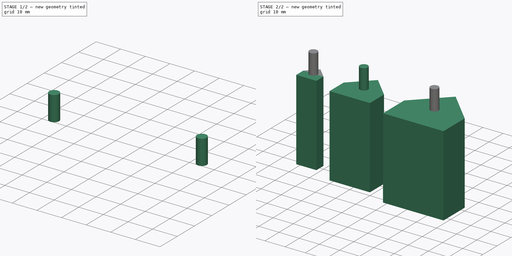
[diagram: build sequence overview — one tinted view per stage of 2, left to right]
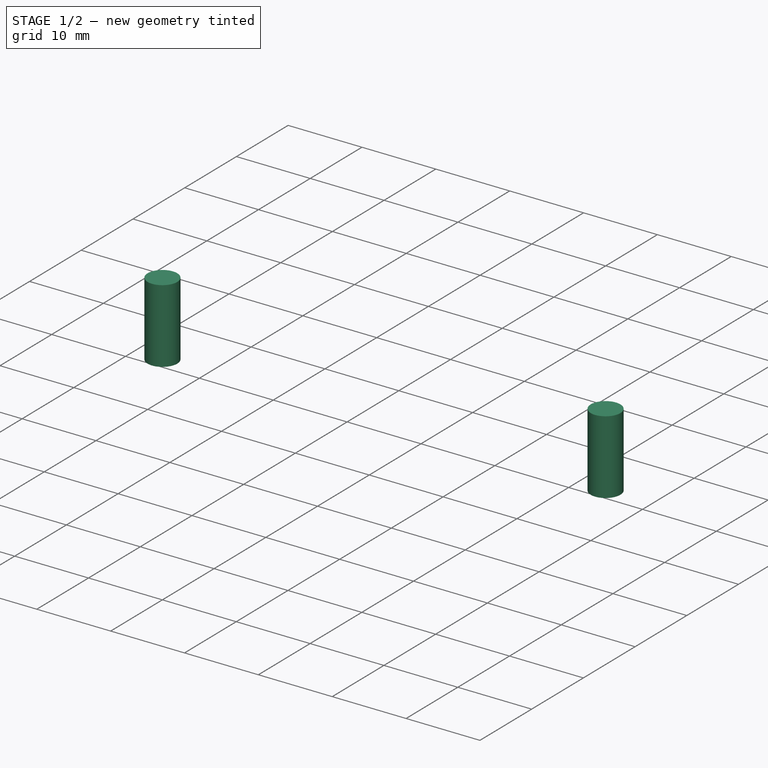
[diagram: stage 1 of 2 — iso view after this stage's code; geometry added in this stage tinted green]
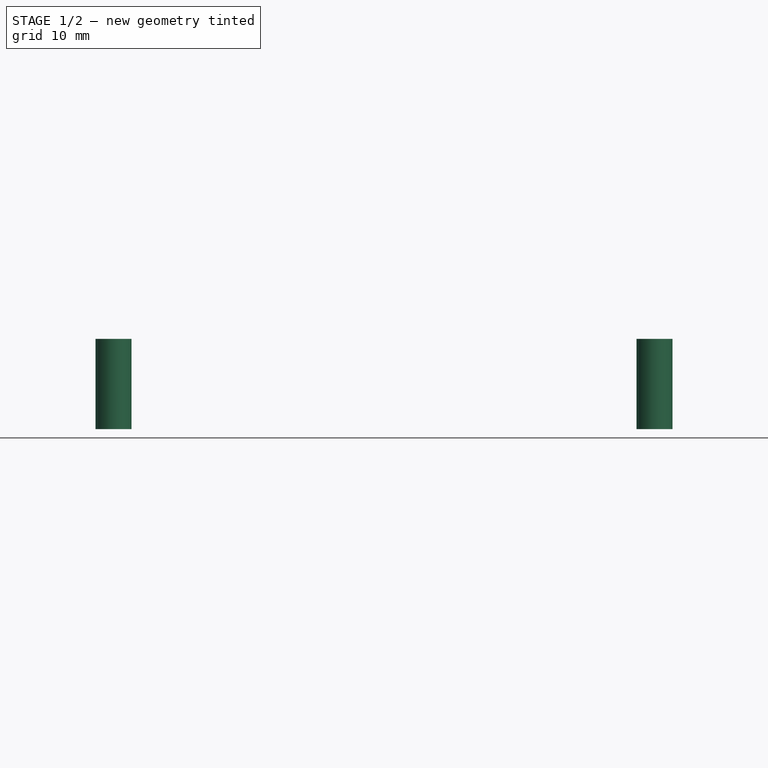
[diagram: stage 1 of 2 — front view after this stage's code; geometry added in this stage tinted green]
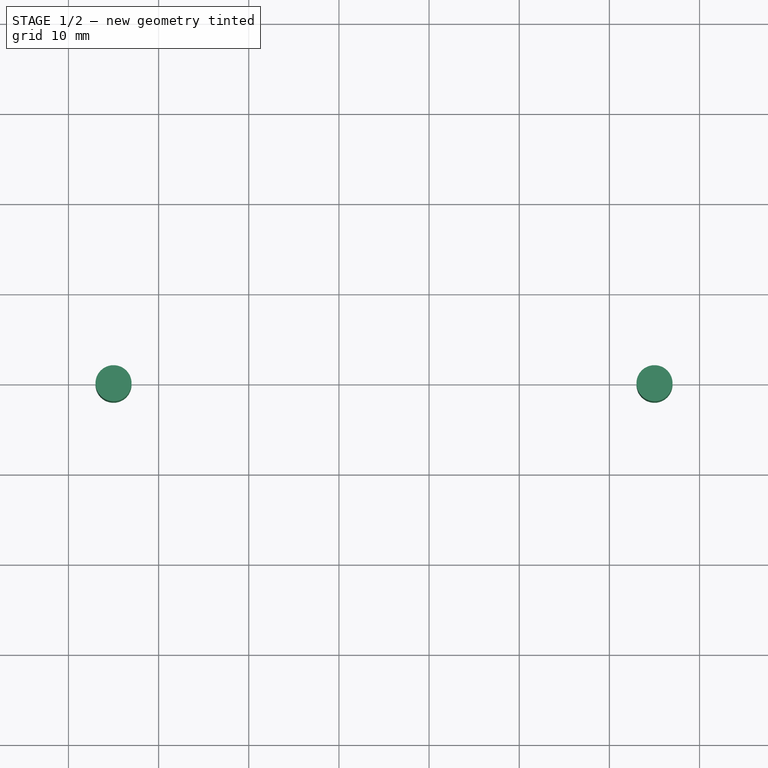
[diagram: stage 1 of 2 — top view after this stage's code; geometry added in this stage tinted green]
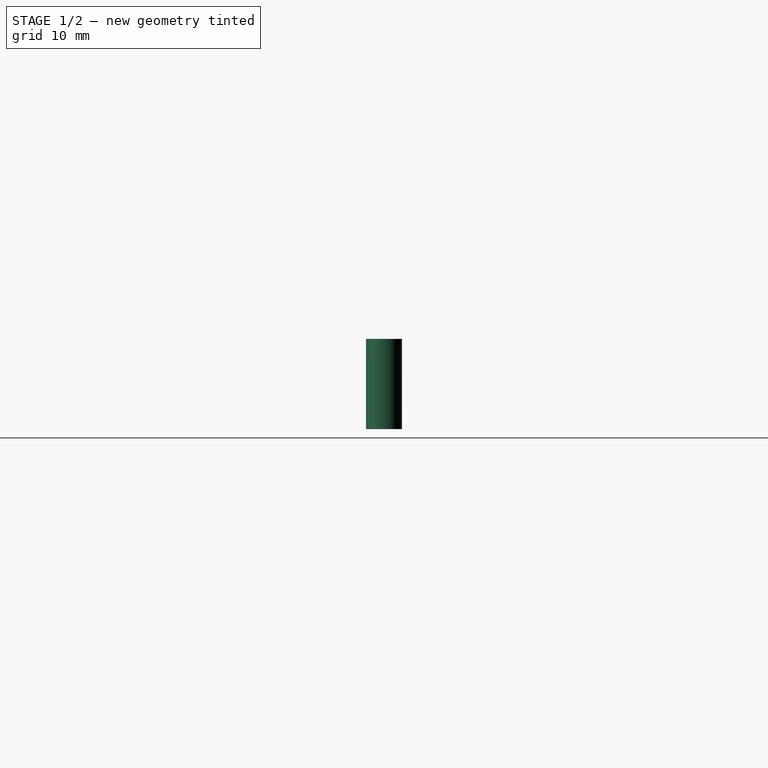
[diagram: stage 1 of 2 — right view after this stage's code; geometry added in this stage tinted green]
FCSTD DOCUMENT  (FreeCAD 1.0R39109 (Git))
Label: 2SidedShape
License: All rights reserved
LicenseURL: https://en.wikipedia.org/wiki/All_rights_reserved
objects: Part::Cylinder×3, Sketcher::SketchObject×1, PartDesign::Body×1, Part::Extrusion×1
note: 7 computed .brp shape members not serialized (recipe doc carries the construction recipe); baked Part::Feature solids carry a one-line shape summary decoded from their .brp

FEATURE [Part::Cylinder] Cylinder001
  Angle = 360
  AttacherType = Attacher::AttachEngine3D
  FirstAngle = 0
  Height = 10
  Placement = pos=(35,0,40) rot=(0,0,1;0rad)
  Radius = 2
  SecondAngle = 0
FEATURE [Part::Cylinder] Cylinder002
  Angle = 360
  AttacherType = Attacher::AttachEngine3D
  FirstAngle = 0
  Height = 10
  Placement = pos=(-25,0,40) rot=(0,0,1;0rad)
  Radius = 2
  SecondAngle = 0
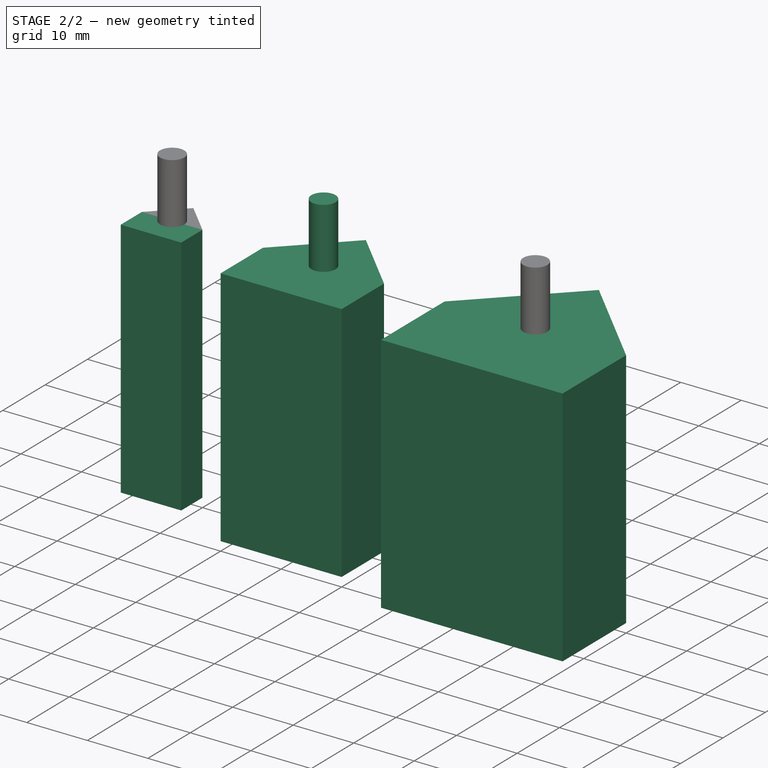
[diagram: stage 2 of 2 — iso view after this stage's code; geometry added in this stage tinted green]
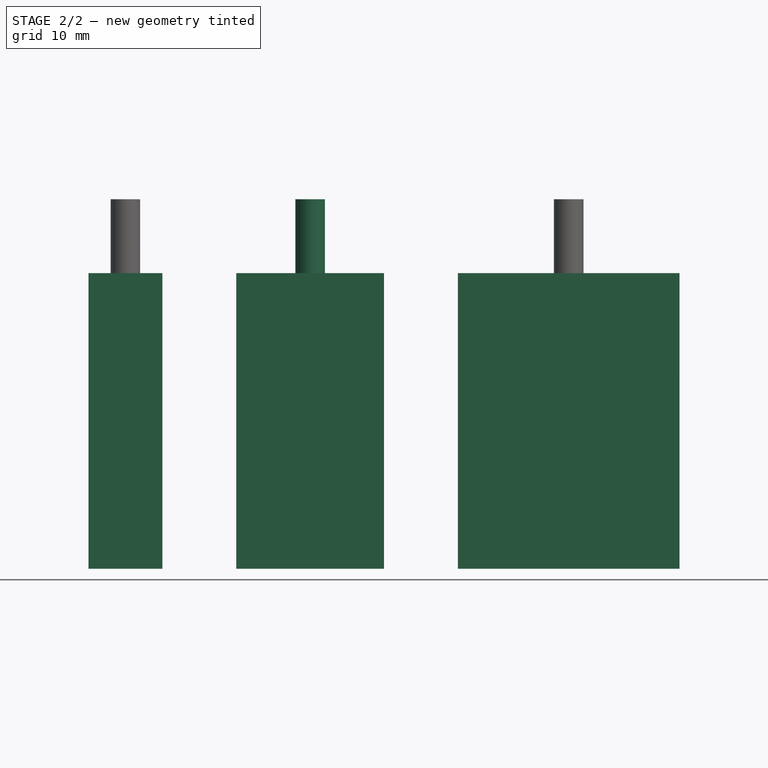
[diagram: stage 2 of 2 — front view after this stage's code; geometry added in this stage tinted green]
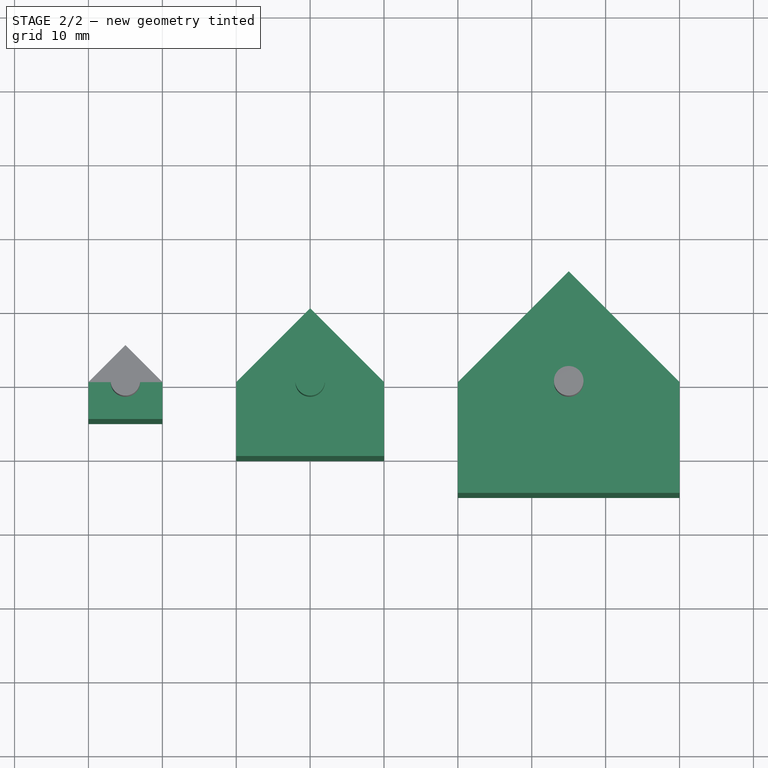
[diagram: stage 2 of 2 — top view after this stage's code; geometry added in this stage tinted green]
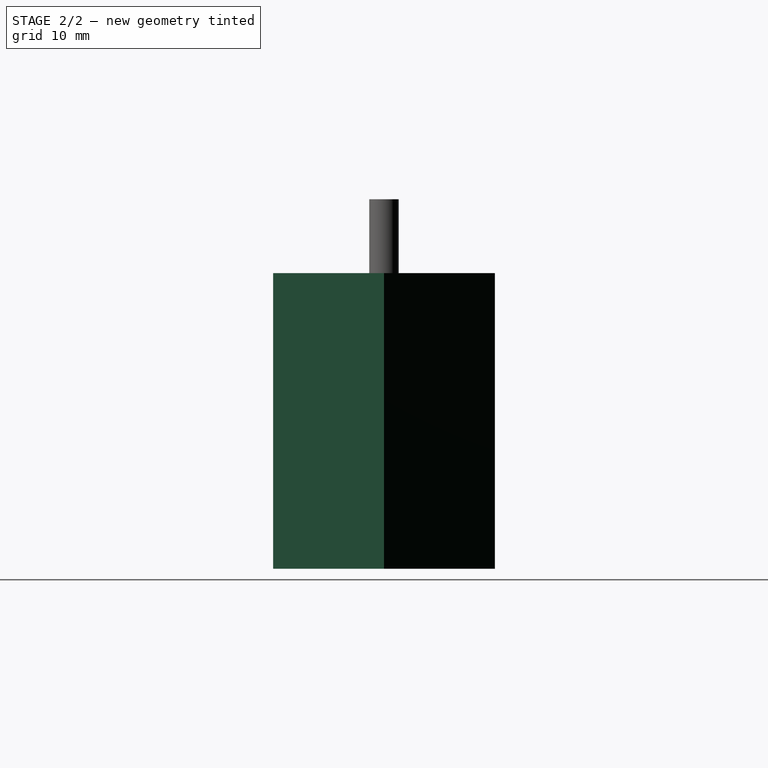
[diagram: stage 2 of 2 — right view after this stage's code; geometry added in this stage tinted green]
FEATURE [Sketcher::SketchObject] Sketch
  ArcFitTolerance = 1e-06
  AttachmentSupport = -> [XY_Plane]
  FullyConstrained = true
  MakeInternals = false
  MapMode = 5
  sketch-geometry (17):
    g0: LineSegment StartX=0 StartY=10 StartZ=0 EndX=-10 EndY=0 EndZ=0
    g1: LineSegment StartX=-10 StartY=0 StartZ=0 EndX=-10 EndY=-10 EndZ=0
    g2: LineSegment StartX=-10 StartY=-10 StartZ=0 EndX=10 EndY=-10 EndZ=0
    g3: LineSegment StartX=10 StartY=-10 StartZ=0 EndX=10 EndY=0 EndZ=0
    g4: LineSegment StartX=10 StartY=0 StartZ=0 EndX=0 EndY=10 EndZ=0
    g5: LineSegment StartX=-30 StartY=0 StartZ=0 EndX=-25 EndY=5 EndZ=0
    g6: LineSegment StartX=-25 StartY=5 StartZ=0 EndX=-20 EndY=0 EndZ=0
    g7: LineSegment StartX=-20 StartY=0 StartZ=0 EndX=-20 EndY=-5 EndZ=0
    g8: LineSegment StartX=-20 StartY=-5 StartZ=0 EndX=-30 EndY=-5 EndZ=0
    g9: LineSegment StartX=-30 StartY=-5 StartZ=0 EndX=-30 EndY=0 EndZ=0
    g10: LineSegment [constr] StartX=-25 StartY=5 StartZ=0 EndX=-25 EndY=-5 EndZ=0
    g11: LineSegment StartX=20 StartY=0 StartZ=0 EndX=35 EndY=15 EndZ=0
    g12: LineSegment StartX=35 StartY=15 StartZ=0 EndX=50 EndY=0 EndZ=0
    g13: LineSegment StartX=50 StartY=0 StartZ=0 EndX=50 EndY=-15 EndZ=0
    g14: LineSegment StartX=50 StartY=-15 StartZ=0 EndX=20 EndY=-15 EndZ=0
    g15: LineSegment StartX=20 StartY=-15 StartZ=0 EndX=20 EndY=0 EndZ=0
    g16: LineSegment [constr] StartX=35 StartY=15 StartZ=0 EndX=35 EndY=-15 EndZ=0
  constraints (45):
    c: PointOnObject(g0,g-2)
    c: PointOnObject(g0,g-1)
    c: Vertical(g1)
    c: Coincident(g4,g0)
    c: Distance(g2,g-1) = 10
    c: Distance(g0,g-1) = 10
    c: Symmetric(g1,g2,g-2)
    c: Symmetric(g0,g3,g-2)
    c: Coincident(g1,g0)
    c: Coincident(g3,g4)
    c: Coincident(g2,g3)
    c: Coincident(g2,g1)
    c: DistanceX(g-1,g3) = 10
    c: PointOnObject(g5,g-1)
    c: Coincident(g6,g5)
    c: PointOnObject(g6,g-1)
    c: Coincident(g7,g6)
    c: Coincident(g8,g7)
    c: Horizontal(g8)
    c: Coincident(g9,g8)
    c: Coincident(g9,g5)
    c: Coincident(g10,g5)
    c: Symmetric(g8,g8,g10)
    c: Symmetric(g5,g6,g10)
    c: Vertical(g7)
    c: DistanceX(g5,g5) = 5
    c: DistanceY(g8,g5) = 5
    c: DistanceY(g5,g5) = 5
    c: PointOnObject(g11,g-1)
    c: Coincident(g12,g11)
    c: PointOnObject(g12,g-1)
    c: Coincident(g13,g12)
    c: Vertical(g13)
    c: Coincident(g14,g13)
    c: Horizontal(g14)
    c: Coincident(g15,g14)
    c: Coincident(g15,g11)
    c: Coincident(g16,g11)
    c: Symmetric(g14,g14,g16)
    c: Symmetric(g11,g12,g16)
    c: Distance(g12,g16) = 15
    c: DistanceY(g13,g12) = 15
    c: Distance(g11,g-1) = 15
    c: DistanceX(g3,g11) = 10
    c: DistanceX(g6,g0) = 10
FEATURE [PartDesign::Body] Body
  AllowCompound = false
  Group = -> [Sketch]
  Origin = -> Origin
FEATURE [Part::Extrusion] Extrude
  Base = -> Sketch
  Dir = (0,0,1)
  DirMode = 2
  FaceMakerClass = Part::FaceMakerBullseye
  FaceMakerMode = 3
  LengthFwd = 40
  LengthRev = 0
  Solid = true
  Symmetric = false
FEATURE [Part::Cylinder] Cylinder
  Angle = 360
  AttacherType = Attacher::AttachEngine3D
  FirstAngle = 0
  Height = 10
  Placement = pos=(0,0,40) rot=(0,0,1;0rad)
  Radius = 2
  SecondAngle = 0
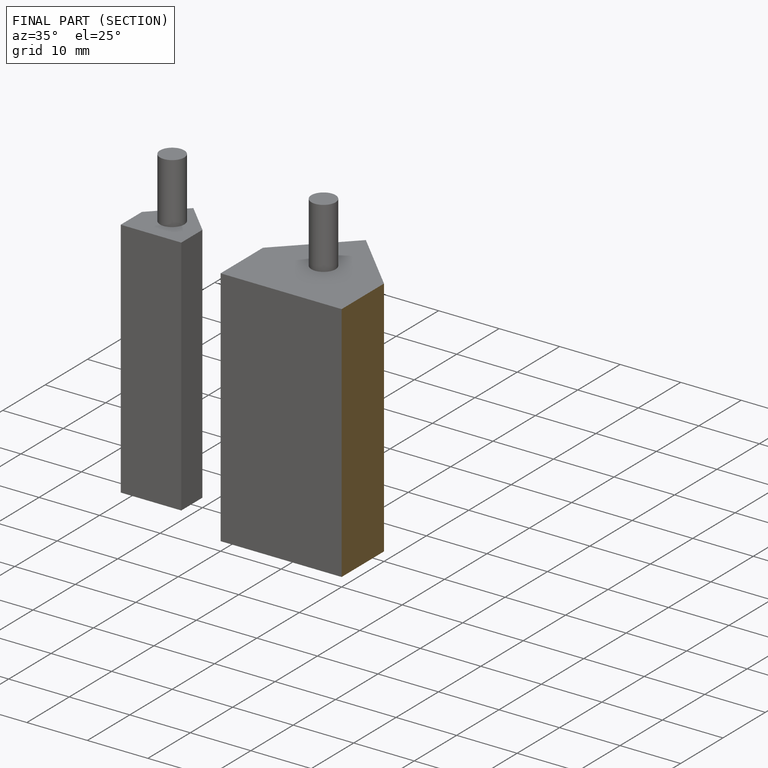
[diagram: finished part — half-section view (interior)]
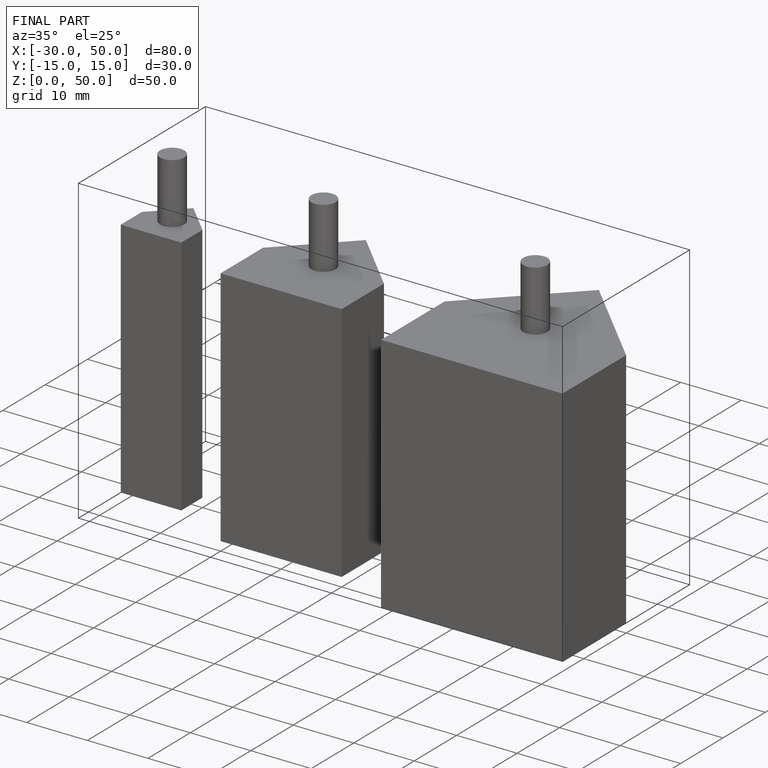
[diagram: finished part — iso view with bounding-box wireframe]
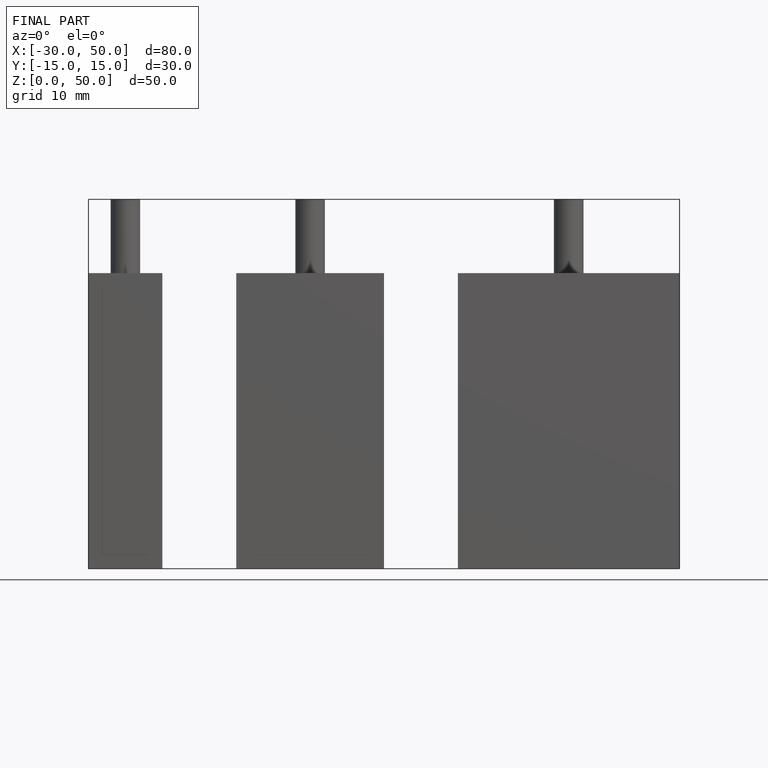
[diagram: finished part — front view with bounding-box wireframe]
